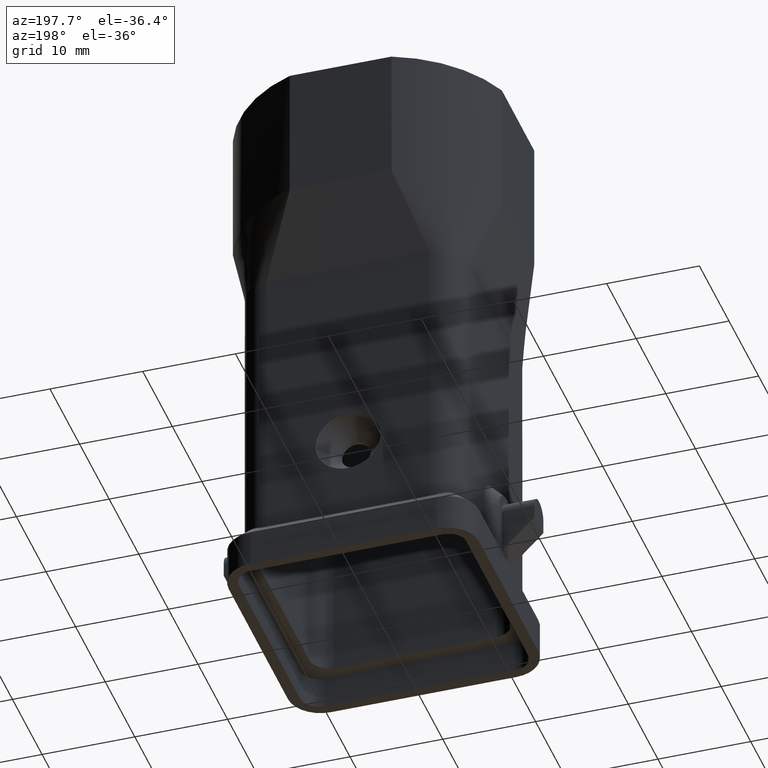
[diagram: clean part render]
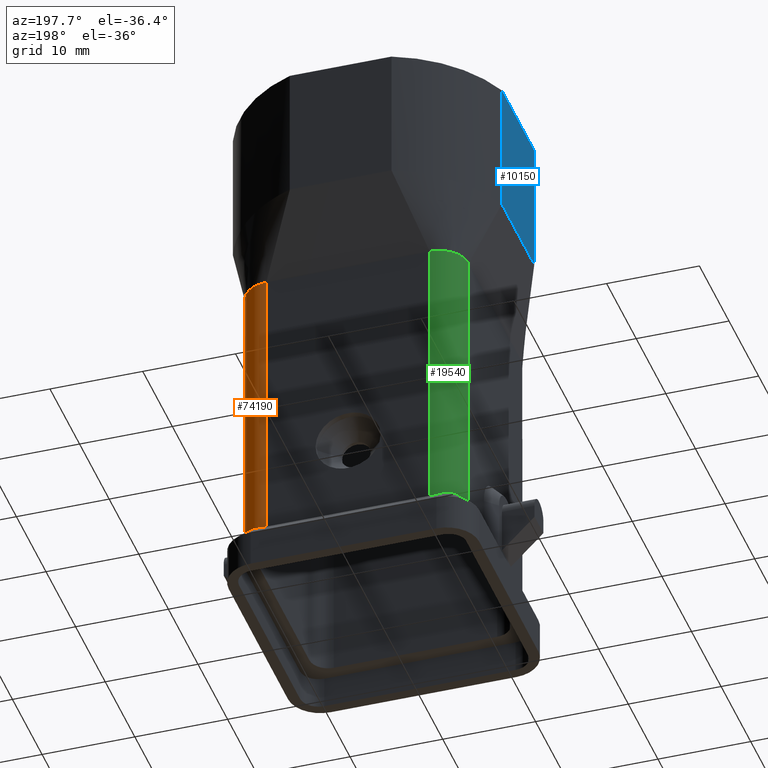
[diagram: same view with three faces highlighted in distinct colors, each labeled with its STEP entity id]
A machine part, auxiliary view with three faces highlighted in distinct colors.
Their STEP definitions:

[orange] entity #74190 — the highlighted cylindrical surface (edge-blend (fillet) strip) has radius 3.2 mm, axis along (0, 0, 1).
#16470=CARTESIAN_POINT('',(54.465603,49.159071,33.1698729810778));
#16480=VERTEX_POINT('',#16470);
#16510=CARTESIAN_POINT('',(54.465603,49.159071,0.));
#16520=DIRECTION('',(0.,0.,1.));
#16530=VECTOR('',#16520,1.);
#16540=LINE('',#16510,#16530);
#16550=CARTESIAN_POINT('',(54.465603,49.159071,1.99999999912267));
#16560=VERTEX_POINT('',#16550);
#16570=EDGE_CURVE('',#16560,#16480,#16540,.T.);
#17670=CARTESIAN_POINT('',(51.265603,52.359071,1.99999999912267));
#17680=VERTEX_POINT('',#17670);
#17730=CARTESIAN_POINT('',(51.265603,52.359071,0.));
#17740=DIRECTION('',(0.,0.,1.));
#17750=VECTOR('',#17740,1.);
#17760=LINE('',#17730,#17750);
#17770=CARTESIAN_POINT('',(51.265603,52.359071,33.1698729810778));
#17780=VERTEX_POINT('',#17770);
#17790=EDGE_CURVE('',#17680,#17780,#17760,.T.);
#50820=CARTESIAN_POINT('',(51.265603,49.159071,33.1698729810778));
#50830=DIRECTION('',(-0.,-0.,1.));
#50840=DIRECTION('',(1.,0.,0.));
#50850=AXIS2_PLACEMENT_3D('',#50820,#50830,#50840);
#50860=CIRCLE('',#50850,3.20000000000002);
#50870=CARTESIAN_POINT('',(53.9053531972302,50.9678603454527,
33.1698729810778));
#50880=VERTEX_POINT('',#50870);
#50890=CARTESIAN_POINT('',(53.0743923454524,51.7988211972304,
33.1698729810778));
#50900=VERTEX_POINT('',#50890);
#50910=EDGE_CURVE('',#50880,#50900,#50860,.T.);
#50930=CARTESIAN_POINT('',(51.265603,49.159071,33.1698729810778));
#50940=DIRECTION('',(-0.,-0.,1.));
#50950=DIRECTION('',(1.,0.,0.));
#50960=AXIS2_PLACEMENT_3D('',#50930,#50940,#50950);
#50970=CIRCLE('',#50960,3.20000000000002);
#50980=EDGE_CURVE('',#16480,#50880,#50970,.T.);
#51320=CARTESIAN_POINT('',(51.265603,49.159071,33.1698729810778));
#51330=DIRECTION('',(-0.,-0.,1.));
#51340=DIRECTION('',(1.,0.,0.));
#51350=AXIS2_PLACEMENT_3D('',#51320,#51330,#51340);
#51360=CIRCLE('',#51350,3.20000000000002);
#51370=EDGE_CURVE('',#50900,#17780,#51360,.T.);
#73050=CARTESIAN_POINT('',(52.4656030000023,52.1255503948373,
2.23352060428532));
#73060=VERTEX_POINT('',#73050);
#73090=CARTESIAN_POINT('',(51.265603,49.159071,5.19999999912266));
#73100=DIRECTION('',(0.,0.707106781186547,0.707106781186548));
#73110=DIRECTION('',(0.,0.707106781186548,-0.707106781186547));
#73120=AXIS2_PLACEMENT_3D('',#73090,#73100,#73110);
#73130=ELLIPSE('',#73120,4.5254833995939,3.2);
#73140=EDGE_CURVE('',#73060,#17680,#73130,.T.);
#73270=CARTESIAN_POINT('',(51.265603,49.159071,0.));
#73280=DIRECTION('',(0.,0.,1.));
#73290=DIRECTION('',(1.,0.,0.));
#73300=AXIS2_PLACEMENT_3D('',#73270,#73280,#73290);
#73310=CYLINDRICAL_SURFACE('',#73300,3.2);
#73320=ORIENTED_EDGE('',*,*,#50980,.F.);
#73330=ORIENTED_EDGE('',*,*,#50910,.F.);
#73340=ORIENTED_EDGE('',*,*,#51370,.F.);
#73350=ORIENTED_EDGE('',*,*,#17790,.T.);
#73360=ORIENTED_EDGE('',*,*,#73140,.T.);
#73370=CARTESIAN_POINT('',(52.4656030000023,52.1255503948373,
2.23352060428533));
#73380=CARTESIAN_POINT('',(52.513381249064,52.1062231414696,
2.25284785765301));
#73390=CARTESIAN_POINT('',(52.5608705541549,52.0856695294056,
2.2714636992818));
#73400=CARTESIAN_POINT('',(52.6080125269736,52.0638836724266,
2.28924966040011));
#73410=CARTESIAN_POINT('',(52.6315835165845,52.0529907424576,
2.29814264216716));
#73420=CARTESIAN_POINT('',(52.6550677277043,52.0417897428099,
2.30682804046403));
#73430=CARTESIAN_POINT('',(52.6784579857629,52.0302799421014,
2.31529035852546));
#73440=CARTESIAN_POINT('',(52.7018441087672,52.0187721761566,
2.32375118057332));
#73450=CARTESIAN_POINT('',(52.7251465063064,52.0069511301835,
2.33199292937519));
#73460=CARTESIAN_POINT('',(52.7483984971042,51.9947926918739,
2.34001242493824));
#73470=CARTESIAN_POINT('',(52.7948943488933,51.970480066321,
2.3560486121346));
#73480=CARTESIAN_POINT('',(52.841116444934,51.9448528282991,
2.37116963721654));
#73490=CARTESIAN_POINT('',(52.886923902464,51.9179328180633,
2.38520543924036));
#73500=CARTESIAN_POINT('',(52.9327313705563,51.8910128016203,
2.39924124450056));
#73510=CARTESIAN_POINT('',(52.9781226717832,51.862800844478,
2.41219076414028));
#73520=CARTESIAN_POINT('',(53.0229613169712,51.8333357112352,
2.42389570933584));
#73530=CARTESIAN_POINT('',(53.0678002112947,51.8038704142763,
2.43560071956719));
#73540=CARTESIAN_POINT('',(53.1120841061442,51.7731534985396,
2.44605992526109));
#73550=CARTESIAN_POINT('',(53.1556864353982,51.7412376497795,
2.45513761186173));
#73560=CARTESIAN_POINT('',(53.1774894520901,51.7252783697328,
2.45967684074843));
#73570=CARTESIAN_POINT('',(53.1991559802104,51.7089946897862,
2.46387800787781));
#73580=CARTESIAN_POINT('',(53.2206617516679,51.692397918802,
2.46772248154557));
#73590=CARTESIAN_POINT('',(53.2421675031254,51.6758011632526,
2.47156695163801));
#73600=CARTESIAN_POINT('',(53.2635123390957,51.6588914268521,
2.47505466657379));
#73610=CARTESIAN_POINT('',(53.284672268777,51.6416823847883,
2.47817003771325));
#73620=CARTESIAN_POINT('',(53.3058321936252,51.6244733466552,
2.48128540814114));
#73630=CARTESIAN_POINT('',(53.3268070358723,51.6069651392196,
2.48402838240432));
#73640=CARTESIAN_POINT('',(53.3475736502015,51.5891735105332,
2.48638696593458));
#73650=CARTESIAN_POINT('',(53.3683402762796,51.5713818717809,
2.48874555079925));
#73660=CARTESIAN_POINT('',(53.3888984868641,51.5533069724142,
2.49071970719491));
#73670=CARTESIAN_POINT('',(53.4092265856742,51.5349661834922,
2.49230143707497));
#73680=CARTESIAN_POINT('',(53.449881557053,51.4982857120101,
2.49546480142121));
#73690=CARTESIAN_POINT('',(53.4895954894312,51.4605641204953,
2.49705803877303));
#73700=CARTESIAN_POINT('',(53.5284091790491,51.4217482187073,
2.4970562725033));
#73710=CARTESIAN_POINT('',(53.5478085204657,51.4023477716334,
2.49705538970989));
#73720=CARTESIAN_POINT('',(53.5669649592966,51.3826909559378,
2.49665571434003));
#73730=CARTESIAN_POINT('',(53.5858571963024,51.3627997638321,
2.49585875054357));
#73740=CARTESIAN_POINT('',(53.6047494343541,51.3429085706252,
2.49506178670298));
#73750=CARTESIAN_POINT('',(53.623377271048,51.3227832135855,
2.49386755132597));
#73760=CARTESIAN_POINT('',(53.6417213285765,51.3024472358958,
2.49228217231737));
#73770=CARTESIAN_POINT('',(53.6784214573565,51.2617619622631,
2.48911037601821));
#73780=CARTESIAN_POINT('',(53.7139246936067,51.2203064625152,
2.48438077904789));
#73790=CARTESIAN_POINT('',(53.7483127848374,51.1780192718169,
2.47815221960279));
#73800=CARTESIAN_POINT('',(53.7655045181123,51.1568785199632,
2.47503835870401));
#73810=CARTESIAN_POINT('',(53.7824072765825,51.1355412401961,
2.47155112622587));
#73820=CARTESIAN_POINT('',(53.7990079782837,51.1140285995422,
2.46770439669534));
#73830=CARTESIAN_POINT('',(53.815608674505,51.0925159659895,
2.46385766843459));
#73840=CARTESIAN_POINT('',(53.8319072035158,51.0708281181409,
2.45965149348711));
#73850=CARTESIAN_POINT('',(53.8478920821323,51.048987161183,
2.45510278052088));
#73860=CARTESIAN_POINT('',(53.8798634985295,51.005302980266,
2.44600488245079));
#73870=CARTESIAN_POINT('',(53.9105719102305,50.9610156180742,
2.43553716836355));
#73880=CARTESIAN_POINT('',(53.939964107712,50.9162826166123,
2.42385740988097));
#73890=CARTESIAN_POINT('',(53.9693688347524,50.8715305459817,
2.41217267245046));
#73900=CARTESIAN_POINT('',(53.9975383539192,50.8262090061704,
2.39924370714309));
#73910=CARTESIAN_POINT('',(54.0244441607684,50.7804270526764,
2.38521620939702));
#73920=CARTESIAN_POINT('',(54.0513498971639,50.7346452190639,
2.37118874838243));
#73930=CARTESIAN_POINT('',(54.0769912602321,50.6884040512673,
2.3560635584055));
#73940=CARTESIAN_POINT('',(54.1013497006666,50.6418186689102,
2.33999592894221));
#73950=CARTESIAN_POINT('',(54.1257081375223,50.5952332933973,
2.32392830183953));
#73960=CARTESIAN_POINT('',(54.1487832607883,50.5483044419005,
2.30691886752657));
#73970=CARTESIAN_POINT('',(54.170567746173,50.5011514087091,
2.28912547766452));
#73980=CARTESIAN_POINT('',(54.1814599787932,50.4775749139148,
2.28022879096037));
#73990=CARTESIAN_POINT('',(54.1920297005088,50.4539424956387,
2.27113613961263));
#74000=CARTESIAN_POINT('',(54.2022770720856,50.430269408723,
2.26186707956245));
#74010=CARTESIAN_POINT('',(54.2125223930696,50.4066010590086,
2.25259987433602));
#74020=CARTESIAN_POINT('',(54.2224512924719,50.3828797222662,
2.24315170665079));
#74030=CARTESIAN_POINT('',(54.2320823948401,50.3590709999954,
2.23352060428255));
#74040=B_SPLINE_CURVE_WITH_KNOTS('',3,(#73370,#73380,#73390,#73400,
#73410,#73420,#73430,#73440,#73450,#73460,#73470,#73480,#73490,#73500,
#73510,#73520,#73530,#73540,#73550,#73560,#73570,#73580,#73590,#73600,
#73610,#73620,#73630,#73640,#73650,#73660,#73670,#73680,#73690,#73700,
#73710,#73720,#73730,#73740,#73750,#73760,#73770,#73780,#73790,#73800,
#73810,#73820,#73830,#73840,#73850,#73860,#73870,#73880,#73890,#73900,
#73910,#73920,#73930,#73940,#73950,#73960,#73970,#73980,#73990,#74000,
#74010,#74020,#74030),.UNSPECIFIED.,.F.,.F.,(4,3,3,3,3,3,3,3,3,3,3,3,3,3
,3,3,3,3,3,3,3,3,4),(0.,0.164910851564985,0.247192922435233,
0.329428417124453,0.494193678394704,0.659025187738144,0.823600055721825,
0.90585710500952,0.988193807860195,1.0705472159731,1.15285956327153,
1.31735535856106,1.39968079800825,1.48200248913447,1.64649150825495,
1.72880028176007,1.8111384869146,1.97568282274473,2.14029249602089,
2.30515636331742,2.47000072612897,2.55230006487792,2.63452834297037),
.UNSPECIFIED.);
#74050=CARTESIAN_POINT('',(54.2320823948401,50.3590709999954,
2.23352060428255));
#74060=VERTEX_POINT('',#74050);
#74070=EDGE_CURVE('',#73060,#74060,#74040,.T.);
#74080=ORIENTED_EDGE('',*,*,#74070,.F.);
#74090=CARTESIAN_POINT('',(51.265603,49.159071,5.19999999912266));
#74100=DIRECTION('',(0.707106781186547,0.,0.707106781186548));
#74110=DIRECTION('',(-0.707106781186548,0.,0.707106781186547));
#74120=AXIS2_PLACEMENT_3D('',#74090,#74100,#74110);
#74130=ELLIPSE('',#74120,4.5254833995939,3.2);
#74140=EDGE_CURVE('',#16560,#74060,#74130,.T.);
#74150=ORIENTED_EDGE('',*,*,#74140,.T.);
#74160=ORIENTED_EDGE('',*,*,#16570,.F.);
#74170=EDGE_LOOP('',(#74160,#74150,#74080,#73360,#73350,#73340,#73330,
#73320));
#74180=FACE_OUTER_BOUND('',#74170,.T.);
#74190=ADVANCED_FACE('',(#74180),#73310,.T.);

[blue] entity #10150 — the highlighted planar face has unit normal (1, 0, 0).
#9760=CARTESIAN_POINT('',(27.965603,25.859071,57.));
#9770=DIRECTION('',(1.,0.,0.));
#9780=DIRECTION('',(0.,-1.,0.));
#9790=AXIS2_PLACEMENT_3D('',#9760,#9770,#9780);
#9800=PLANE('',#9790);
#9810=CARTESIAN_POINT('',(27.965603,5.969071,42.5));
#9820=DIRECTION('',(0.,-1.,0.));
#9830=VECTOR('',#9820,1.);
#9840=LINE('',#9810,#9830);
#9850=CARTESIAN_POINT('',(27.965603,45.8362965750517,42.5));
#9860=VERTEX_POINT('',#9850);
#9870=CARTESIAN_POINT('',(27.965603,34.8818454249483,42.5));
#9880=VERTEX_POINT('',#9870);
#9890=EDGE_CURVE('',#9860,#9880,#9840,.T.);
#9900=ORIENTED_EDGE('',*,*,#9890,.T.);
#9910=CARTESIAN_POINT('',(27.965603,45.8362965750517,44.));
#9920=DIRECTION('',(0.,0.,1.));
#9930=VECTOR('',#9920,1.);
#9940=LINE('',#9910,#9930);
#9950=CARTESIAN_POINT('',(27.965603,45.8362965750517,57.));
#9960=VERTEX_POINT('',#9950);
#9970=EDGE_CURVE('',#9860,#9960,#9940,.T.);
#9980=ORIENTED_EDGE('',*,*,#9970,.F.);
#9990=CARTESIAN_POINT('',(27.965603,25.859071,57.));
#10000=DIRECTION('',(0.,1.,0.));
#10010=VECTOR('',#10000,1.);
#10020=LINE('',#9990,#10010);
#10030=CARTESIAN_POINT('',(27.965603,34.8818454249484,57.));
#10040=VERTEX_POINT('',#10030);
#10050=EDGE_CURVE('',#10040,#9960,#10020,.T.);
#10060=ORIENTED_EDGE('',*,*,#10050,.T.);
#10070=CARTESIAN_POINT('',(27.965603,34.8818454249483,44.));
#10080=DIRECTION('',(0.,0.,1.));
#10090=VECTOR('',#10080,1.);
#10100=LINE('',#10070,#10090);
#10110=EDGE_CURVE('',#9880,#10040,#10100,.T.);
#10120=ORIENTED_EDGE('',*,*,#10110,.T.);
#10130=EDGE_LOOP('',(#10120,#10060,#9980,#9900));
#10140=FACE_OUTER_BOUND('',#10130,.T.);
#10150=ADVANCED_FACE('',(#10140),#9800,.F.);

[green] entity #19540 — the highlighted cylindrical surface (edge-blend (fillet) strip) has radius 3.2 mm, axis along (0, 0, 1).
#17690=CARTESIAN_POINT('',(33.665603,52.359071,1.99999999912267));
#17700=VERTEX_POINT('',#17690);
#17850=CARTESIAN_POINT('',(33.665603,52.359071,33.1698729810778));
#17860=VERTEX_POINT('',#17850);
#17890=CARTESIAN_POINT('',(33.665603,52.359071,14.));
#17900=DIRECTION('',(0.,0.,1.));
#17910=VECTOR('',#17900,1.);
#17920=LINE('',#17890,#17910);
#17930=EDGE_CURVE('',#17700,#17860,#17920,.T.);
#18200=CARTESIAN_POINT('',(33.665603,49.159071,14.));
#18210=DIRECTION('',(0.,0.,1.));
#18220=DIRECTION('',(1.,0.,0.));
#18230=AXIS2_PLACEMENT_3D('',#18200,#18210,#18220);
#18240=CYLINDRICAL_SURFACE('',#18230,3.2);
#18250=CARTESIAN_POINT('',(33.6656029999999,49.159071,33.1698729810778))
;
#18260=DIRECTION('',(0.,0.,1.));
#18270=DIRECTION('',(1.,0.,-0.));
#18280=AXIS2_PLACEMENT_3D('',#18250,#18260,#18270);
#18290=CIRCLE('',#18280,3.19999999999996);
#18300=CARTESIAN_POINT('',(31.8568136545482,51.7988211972308,
33.1698729810778));
#18310=VERTEX_POINT('',#18300);
#18320=EDGE_CURVE('',#17860,#18310,#18290,.T.);
#18330=ORIENTED_EDGE('',*,*,#18320,.F.);
#18340=CARTESIAN_POINT('',(33.6656029999999,49.159071,33.1698729810778))
;
#18350=DIRECTION('',(0.,0.,1.));
#18360=DIRECTION('',(1.,0.,-0.));
#18370=AXIS2_PLACEMENT_3D('',#18340,#18350,#18360);
#18380=CIRCLE('',#18370,3.19999999999996);
#18390=CARTESIAN_POINT('',(31.0258528027696,50.9678603454525,
33.1698729810778));
#18400=VERTEX_POINT('',#18390);
#18410=EDGE_CURVE('',#18310,#18400,#18380,.T.);
#18420=ORIENTED_EDGE('',*,*,#18410,.F.);
#18430=CARTESIAN_POINT('',(33.6656029999999,49.159071,33.1698729810778))
;
#18440=DIRECTION('',(0.,0.,1.));
#18450=DIRECTION('',(1.,0.,-0.));
#18460=AXIS2_PLACEMENT_3D('',#18430,#18440,#18450);
#18470=CIRCLE('',#18460,3.19999999999996);
#18480=CARTESIAN_POINT('',(30.465603,49.1590713196693,33.1698729810778))
;
#18490=VERTEX_POINT('',#18480);
#18500=EDGE_CURVE('',#18400,#18490,#18470,.T.);
#18510=ORIENTED_EDGE('',*,*,#18500,.F.);
#18520=CARTESIAN_POINT('',(30.465603,49.159071,14.));
#18530=DIRECTION('',(0.,0.,1.));
#18540=VECTOR('',#18530,1.);
#18550=LINE('',#18520,#18540);
#18560=CARTESIAN_POINT('',(30.465603,49.159071,1.99999999912266));
#18570=VERTEX_POINT('',#18560);
#18580=EDGE_CURVE('',#18570,#18490,#18550,.T.);
#18590=ORIENTED_EDGE('',*,*,#18580,.T.);
#18600=CARTESIAN_POINT('',(33.665603,49.159071,5.19999999912266));
#18610=DIRECTION('',(-0.707106781186547,0.,0.707106781186548));
#18620=DIRECTION('',(-0.707106781186548,0.,-0.707106781186547));
#18630=AXIS2_PLACEMENT_3D('',#18600,#18610,#18620);
#18640=ELLIPSE('',#18630,4.5254833995939,3.2);
#18650=CARTESIAN_POINT('',(30.6991236051618,50.3590710000002,
2.23352060428449));
#18660=VERTEX_POINT('',#18650);
#18670=EDGE_CURVE('',#18660,#18570,#18640,.T.);
#18680=ORIENTED_EDGE('',*,*,#18670,.T.);
#18690=CARTESIAN_POINT('',(30.6991236051621,50.3590710000005,
2.23352060428504));
#18700=CARTESIAN_POINT('',(30.7183530859253,50.4066075487152,
2.25275008504827));
#18710=CARTESIAN_POINT('',(30.7388657301836,50.4540280422529,
2.2713441584844));
#18720=CARTESIAN_POINT('',(30.7606791522965,50.5012399308889,
2.28915888102368));
#18730=CARTESIAN_POINT('',(30.7824913237867,50.5484491127392,
2.30697258219657));
#18740=CARTESIAN_POINT('',(30.8055992054313,50.5954376776469,
2.32400190795395));
#18750=CARTESIAN_POINT('',(30.8299946147095,50.6420831662583,
2.3400871471082));
#18760=CARTESIAN_POINT('',(30.8543900198251,50.6887286469106,
2.35617238351782));
#18770=CARTESIAN_POINT('',(30.8800725451864,50.7350302574956,
2.37131286526368));
#18780=CARTESIAN_POINT('',(30.9070218704258,50.7808694312353,
2.38535172347336));
#18790=CARTESIAN_POINT('',(30.9339712600007,50.8267087144057,
2.39939061519767));
#18800=CARTESIAN_POINT('',(30.9621867527013,50.8720843989614,
2.41232703475599));
#18810=CARTESIAN_POINT('',(30.9916370411229,50.9168838599911,
2.42401432828308));
#18820=CARTESIAN_POINT('',(31.0063621572304,50.9392835477554,
2.42985796389387));
#18830=CARTESIAN_POINT('',(31.0213957134329,50.9615391363505,
2.43538948752822));
#18840=CARTESIAN_POINT('',(31.036732910756,50.9836372645895,
2.44059217857043));
#18850=CARTESIAN_POINT('',(31.0520658397379,51.0057292429206,
2.44579342170399));
#18860=CARTESIAN_POINT('',(31.067720121035,51.0276897781175,
2.45067219796481));
#18870=CARTESIAN_POINT('',(31.0836990455255,51.0495132683247,
2.45521229031547));
#18880=CARTESIAN_POINT('',(31.0996768836752,51.0713352748435,
2.45975207400411));
#18890=CARTESIAN_POINT('',(31.1159747897084,51.0930137331238,
2.46395166249817));
#18900=CARTESIAN_POINT('',(31.1325811537998,51.1145249950284,
2.46779310021787));
#18910=CARTESIAN_POINT('',(31.1491875113512,51.1360362484614,
2.47163453642473));
#18920=CARTESIAN_POINT('',(31.1661022153775,51.1573801501665,
2.47511776448076));
#18930=CARTESIAN_POINT('',(31.1833115812656,51.1785336296313,
2.47822791240197));
#18940=CARTESIAN_POINT('',(31.2005209523699,51.1996871155079,
2.48133806126588));
#18950=CARTESIAN_POINT('',(31.2180248492069,51.2206500083579,
2.48407508254355));
#18960=CARTESIAN_POINT('',(31.2358078508885,51.2414003527572,
2.48642766999032));
#18970=CARTESIAN_POINT('',(31.2535908722752,51.2621507201498,
2.48878026004397));
#18980=CARTESIAN_POINT('',(31.2716528401207,51.2826883593719,
2.49074838380133));
#18990=CARTESIAN_POINT('',(31.2899770962098,51.3029930054006,
2.49232463023783));
#19000=CARTESIAN_POINT('',(31.3082967950124,51.3232926016152,
2.49390048465806));
#19010=CARTESIAN_POINT('',(31.3269021609085,51.3433854808546,
2.49508676022533));
#19020=CARTESIAN_POINT('',(31.345783119199,51.3632569541882,
2.49587700015417));
#19030=CARTESIAN_POINT('',(31.3646633872027,51.3831277010217,
2.49666721119189));
#19040=CARTESIAN_POINT('',(31.3838162388569,51.4027737512076,
2.49706115459753));
#19050=CARTESIAN_POINT('',(31.4032211160948,51.4221724584807,
2.49705622829364));
#19060=CARTESIAN_POINT('',(31.4226259874479,51.4415711598709,
2.49705130199124));
#19070=CARTESIAN_POINT('',(31.4422826760703,51.460722307531,
2.4966475037237));
#19080=CARTESIAN_POINT('',(31.4621687055013,51.4796048415604,
2.49584692398098));
#19090=CARTESIAN_POINT('',(31.4820547480567,51.4984873880519,
2.4950463437099));
#19100=CARTESIAN_POINT('',(31.5021699167782,51.5171011244829,
2.49384900357283));
#19110=CARTESIAN_POINT('',(31.5224905301722,51.5354272320638,
2.49226158830331));
#19120=CARTESIAN_POINT('',(31.5631164288428,51.5720656235912,
2.48908795517338));
#19130=CARTESIAN_POINT('',(31.6046068032719,51.6075944655592,
2.48435106097416));
#19140=CARTESIAN_POINT('',(31.6469098898107,51.6419882613831,
2.47811461965869));
#19150=CARTESIAN_POINT('',(31.6680565520329,51.6591811908437,
2.47499711857882));
#19160=CARTESIAN_POINT('',(31.6893958525106,51.6760817983467,
2.47150670721366));
#19170=CARTESIAN_POINT('',(31.7109054144791,51.6926766025275,
2.4676578869676));
#19180=CARTESIAN_POINT('',(31.7324149785973,51.7092714083669,
2.46380906633685));
#19190=CARTESIAN_POINT('',(31.7540946522118,51.7255602996799,
2.45960189148575));
#19200=CARTESIAN_POINT('',(31.7759213306646,51.7415316848078,
2.45505393208459));
#19210=CARTESIAN_POINT('',(31.7977480243391,51.7575030810739,
2.45050596951174));
#19220=CARTESIAN_POINT('',(31.8197215891823,51.7731568835071,
2.44561728221559));
#19230=CARTESIAN_POINT('',(31.8418186603965,51.7884836117095,
2.44040796373366));
#19240=CARTESIAN_POINT('',(31.8639139048295,51.8038090728399,
2.43519907590997));
#19250=CARTESIAN_POINT('',(31.8861643516706,51.8188296137189,
2.42966221139239));
#19260=CARTESIAN_POINT('',(31.9085559578751,51.8335402355228,
2.42381443465312));
#19270=CARTESIAN_POINT('',(31.9533392087295,51.8629615043882,
2.4121188711342));
#19280=CARTESIAN_POINT('',(31.9986861165414,51.8911413767868,
2.39917911874852));
#19290=CARTESIAN_POINT('',(32.0444745960409,51.918045936056,
2.38514645040415));
#19300=CARTESIAN_POINT('',(32.0902629952899,51.9449504481715,
2.3711138066539));
#19310=CARTESIAN_POINT('',(32.1364916593765,51.9705788905594,
2.35598917455053));
#19320=CARTESIAN_POINT('',(32.1830328536645,51.994910516109,
2.33993469618988));
#19330=CARTESIAN_POINT('',(32.2295750049845,52.0192426419926,
2.32387988769915));
#19340=CARTESIAN_POINT('',(32.2764248065953,52.0422756078525,
2.306897427969));
#19350=CARTESIAN_POINT('',(32.3234627016518,52.0640080766937,
2.28914807686309));
#19360=CARTESIAN_POINT('',(32.3705178108338,52.0857484988126,
2.27139223015282));
#19370=CARTESIAN_POINT('',(32.4179163802957,52.1062602073708,
2.25281079175203));
#19380=CARTESIAN_POINT('',(32.4656030000069,52.125550394841,
2.23352060428162));
#19390=B_SPLINE_CURVE_WITH_KNOTS('',3,(#18690,#18700,#18710,#18720,
#18730,#18740,#18750,#18760,#18770,#18780,#18790,#18800,#18810,#18820,
#18830,#18840,#18850,#18860,#18870,#18880,#18890,#18900,#18910,#18920,
#18930,#18940,#18950,#18960,#18970,#18980,#18990,#19000,#19010,#19020,
#19030,#19040,#19050,#19060,#19070,#19080,#19090,#19100,#19110,#19120,
#19130,#19140,#19150,#19160,#19170,#19180,#19190,#19200,#19210,#19220,
#19230,#19240,#19250,#19260,#19270,#19280,#19290,#19300,#19310,#19320,
#19330,#19340,#19350,#19360,#19370,#19380),.UNSPECIFIED.,.F.,.F.,(4,3,3,
3,3,3,3,3,3,3,3,3,3,3,3,3,3,3,3,3,3,3,3,4),(0.,0.164630695667404,
0.329684089513585,0.494766584328935,0.659581905868449,0.741832351731172,
0.824051006491195,0.906361371403834,0.988704172085299,1.07102135279244,
1.15326219535336,1.23547844000448,1.3177730229143,1.4000871028294,
1.48235832709798,1.64682255547227,1.72913201224589,1.81143317643323,
1.89366540701328,1.97588442074417,2.1405656464308,2.30536588096992,
2.46993103611868,2.6345283917488),.UNSPECIFIED.);
#19400=CARTESIAN_POINT('',(32.4656030000083,52.1255503948416,
2.23352060428103));
#19410=VERTEX_POINT('',#19400);
#19420=EDGE_CURVE('',#18660,#19410,#19390,.T.);
#19430=ORIENTED_EDGE('',*,*,#19420,.F.);
#19440=CARTESIAN_POINT('',(33.665603,49.159071,5.19999999912266));
#19450=DIRECTION('',(0.,0.707106781186547,0.707106781186548));
#19460=DIRECTION('',(0.,0.707106781186548,-0.707106781186547));
#19470=AXIS2_PLACEMENT_3D('',#19440,#19450,#19460);
#19480=ELLIPSE('',#19470,4.5254833995939,3.2);
#19490=EDGE_CURVE('',#17700,#19410,#19480,.T.);
#19500=ORIENTED_EDGE('',*,*,#19490,.T.);
#19510=ORIENTED_EDGE('',*,*,#17930,.F.);
#19520=EDGE_LOOP('',(#19510,#19500,#19430,#18680,#18590,#18510,#18420,
#18330));
#19530=FACE_OUTER_BOUND('',#19520,.T.);
#19540=ADVANCED_FACE('',(#19530),#18240,.T.);